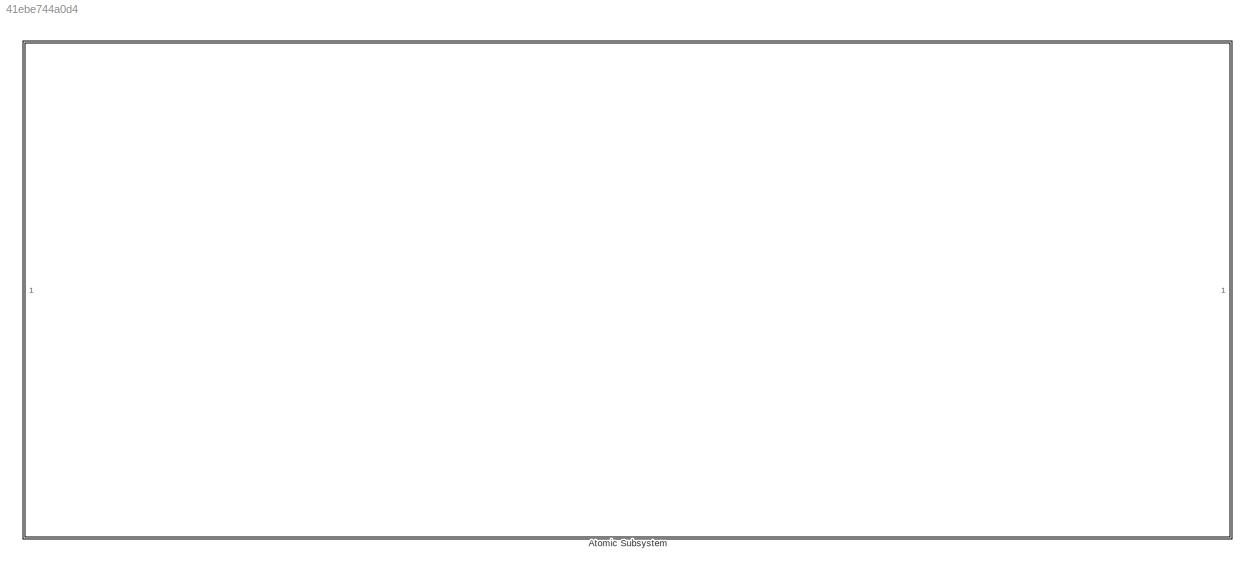
MODEL slx_41ebe744a0d4
KIND model
CONFIG AbsTol = auto
CONFIG EnableMultiTasking = off
CONFIG FixedStep = auto
CONFIG MaxStep = auto
CONFIG MinStep = auto
CONFIG RelTol = 1e-3
CONFIG SampleTimeConstraint = Unconstrained
CONFIG SolverName = VariableStepAuto
CONFIG StartTime = 0.0
CONFIG StopTime = 10.0
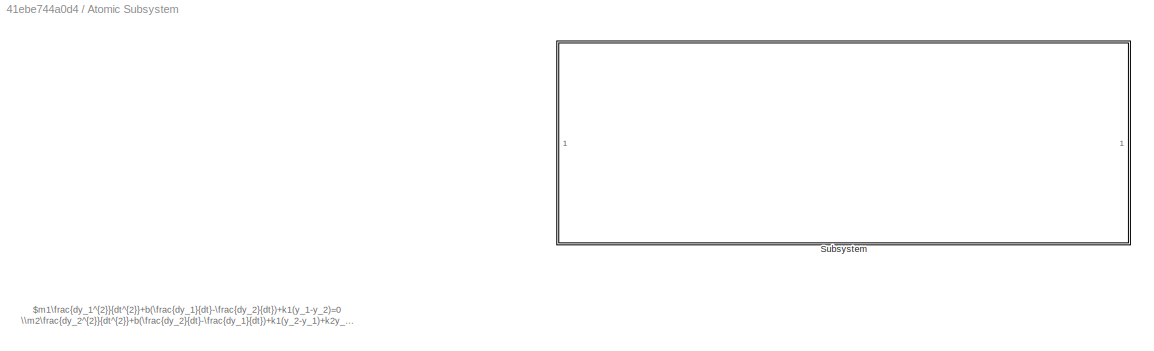
BLOCK [SubSystem] Atomic Subsystem
  Ports = []
  RequestExecContextInheritance = off
  TreatAsAtomicUnit = on
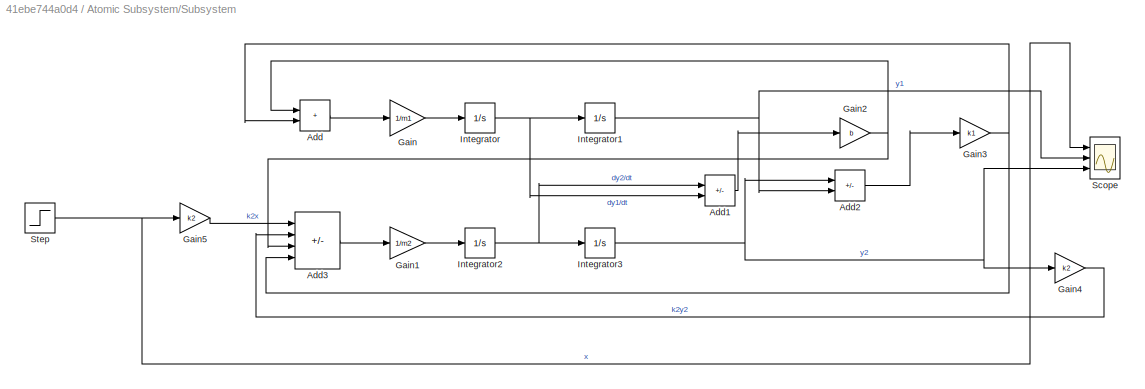
BLOCK [SubSystem] Atomic Subsystem/Subsystem
  Ports = []
  RequestExecContextInheritance = off
  TreatAsAtomicUnit = on
BLOCK [Sum] Atomic Subsystem/Subsystem/Add
  IconShape = rectangular
  Ports = [2, 1]
BLOCK [Sum] Atomic Subsystem/Subsystem/Add1
  IconShape = rectangular
  Inputs = +-
  Ports = [2, 1]
BLOCK [Sum] Atomic Subsystem/Subsystem/Add2
  IconShape = rectangular
  Inputs = +-
  Ports = [2, 1]
BLOCK [Sum] Atomic Subsystem/Subsystem/Add3
  IconShape = rectangular
  Inputs = +---
  Ports = [4, 1]
BLOCK [Gain] Atomic Subsystem/Subsystem/Gain
  Gain = 1/m1
BLOCK [Gain] Atomic Subsystem/Subsystem/Gain1
  Gain = 1/m2
BLOCK [Gain] Atomic Subsystem/Subsystem/Gain2
  Gain = b
BLOCK [Gain] Atomic Subsystem/Subsystem/Gain3
  Gain = k1
BLOCK [Gain] Atomic Subsystem/Subsystem/Gain4
  Gain = k2
BLOCK [Gain] Atomic Subsystem/Subsystem/Gain5
  Gain = k2
BLOCK [Integrator] Atomic Subsystem/Subsystem/Integrator
  Ports = [1, 1]
BLOCK [Integrator] Atomic Subsystem/Subsystem/Integrator1
  Ports = [1, 1]
BLOCK [Integrator] Atomic Subsystem/Subsystem/Integrator2
  Ports = [1, 1]
BLOCK [Integrator] Atomic Subsystem/Subsystem/Integrator3
  Ports = [1, 1]
BLOCK [Scope] Atomic Subsystem/Subsystem/Scope
  Floating = off
  NumInputPorts = 3
  Ports = [3]
  ScopeSpecificationString = Simulink.scopes.TimeScopeBlockCfg('CurrentConfiguration', extmgr.ConfigurationSet(extmgr.Configuration('Core','General UI',true),extmgr.Configuration('Core','Source UI',true),extmgr.Configuration('Sources','WiredSimulink',true),extmgr.Configuration('Visuals','Time Domain',true,'SerializedDisplays',{struct('MinYLimReal','-0.125','MaxYLimReal','1.125','YLabelReal','','MinYLimMag','0.00000','MaxYLimM...<+2723ch>
BLOCK [Step] Atomic Subsystem/Subsystem/Step
  SampleTime = 0
  Time = 5
ANNOTATION Atomic Subsystem: $m1\frac{dy_1^{2}}{dt^{2}}+b(\frac{dy_1}{dt}-\frac{dy_2}{dt})+k1(y_1-y_2)=0 \\m2\frac{dy_2^{2}}{dt^{2}}+b(\frac{dy_2}{dt}-\frac{dy_1}{dt})+k1(y_2-y_1)+k2y_1=k2x$
LINE Atomic Subsystem/Subsystem/Add1:1 -> Atomic Subsystem/Subsystem/Gain2:1
LINE Atomic Subsystem/Subsystem/Add2:1 -> Atomic Subsystem/Subsystem/Gain3:1
LINE Atomic Subsystem/Subsystem/Add3:1 -> Atomic Subsystem/Subsystem/Gain1:1
LINE Atomic Subsystem/Subsystem/Add:1 -> Atomic Subsystem/Subsystem/Gain:1
LINE Atomic Subsystem/Subsystem/Gain1:1 -> Atomic Subsystem/Subsystem/Integrator2:1
NET Atomic Subsystem/Subsystem/Gain2:1 -> Atomic Subsystem/Subsystem/Add3:3, Atomic Subsystem/Subsystem/Add:1
NET Atomic Subsystem/Subsystem/Gain3:1 -> Atomic Subsystem/Subsystem/Add3:4, Atomic Subsystem/Subsystem/Add:2
LINE Atomic Subsystem/Subsystem/Gain4:1 -> Atomic Subsystem/Subsystem/Add3:2
LINE Atomic Subsystem/Subsystem/Gain5:1 -> Atomic Subsystem/Subsystem/Add3:1
LINE Atomic Subsystem/Subsystem/Gain:1 -> Atomic Subsystem/Subsystem/Integrator:1
NET Atomic Subsystem/Subsystem/Integrator1:1 -> Atomic Subsystem/Subsystem/Add2:2, Atomic Subsystem/Subsystem/Scope:2
NET Atomic Subsystem/Subsystem/Integrator2:1 -> Atomic Subsystem/Subsystem/Add1:1, Atomic Subsystem/Subsystem/Integrator3:1
NET Atomic Subsystem/Subsystem/Integrator3:1 -> Atomic Subsystem/Subsystem/Add2:1, Atomic Subsystem/Subsystem/Gain4:1, Atomic Subsystem/Subsystem/Scope:3
NET Atomic Subsystem/Subsystem/Integrator:1 -> Atomic Subsystem/Subsystem/Add1:2, Atomic Subsystem/Subsystem/Integrator1:1
NET Atomic Subsystem/Subsystem/Step:1 -> Atomic Subsystem/Subsystem/Gain5:1, Atomic Subsystem/Subsystem/Scope:1
note: NET lines group one-source signal fan-out (src -> all destinations, sorted); 1:1 wires keep LINE
